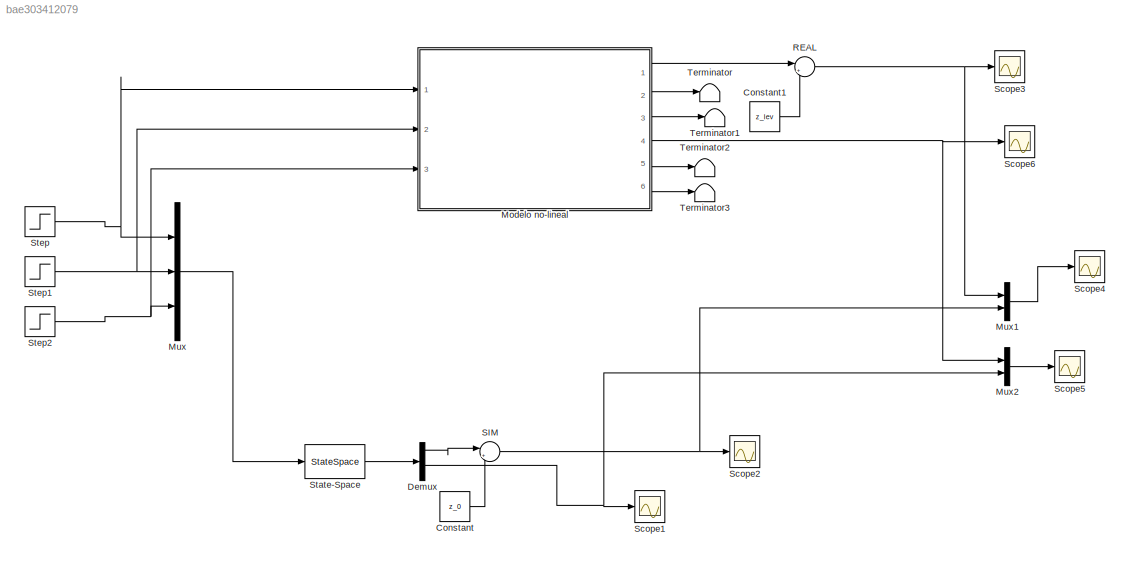
MODEL slx_bae303412079
KIND model
CONFIG AbsTol = auto
CONFIG EnableMultiTasking = off
CONFIG FixedStep = auto
CONFIG MaxStep = auto
CONFIG MinStep = auto
CONFIG RelTol = 1e-3
CONFIG SampleTimeConstraint = Unconstrained
CONFIG Solver = VariableStepAuto
CONFIG SolverName = VariableStepAuto
CONFIG StartTime = 0.0
CONFIG StopTime = 0.1
BLOCK [Constant] Constant
  Value = z_0
BLOCK [Constant] Constant1
  Value = z_lev
BLOCK [Demux] Demux
  Ports = [1, 4]
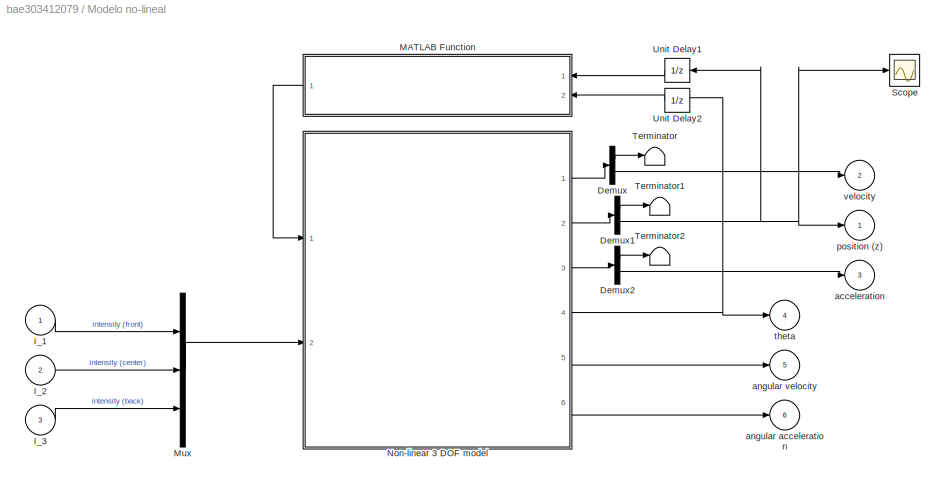
BLOCK [SubSystem] Modelo no-lineal
  Ports = [3, 6]
  RequestExecContextInheritance = off
BLOCK [Demux] Modelo no-lineal/Demux
  Outputs = 2
  Ports = [1, 2]
BLOCK [Demux] Modelo no-lineal/Demux1
  Outputs = 2
  Ports = [1, 2]
BLOCK [Demux] Modelo no-lineal/Demux2
  Outputs = 2
  Ports = [1, 2]
BLOCK [Inport] Modelo no-lineal/I_1
BLOCK [Inport] Modelo no-lineal/I_2
  Port = 2
BLOCK [Inport] Modelo no-lineal/I_3
  Port = 3
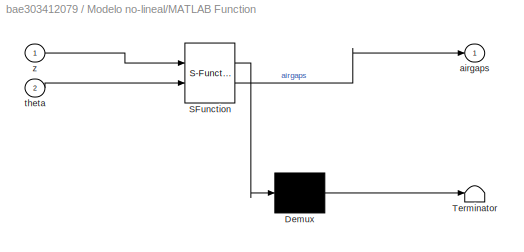
BLOCK [SubSystem] Modelo no-lineal/MATLAB Function
  ErrorFcn = Stateflow.Translate.translate
  PermitHierarchicalResolution = ExplicitOnly
  Ports = [2, 1]
  RequestExecContextInheritance = off
  SFBlockType = MATLAB Function
  TreatAsAtomicUnit = on
BLOCK [Demux] Modelo no-lineal/MATLAB Function/ Demux 
  Outputs = 1
  Ports = [1, 1]
BLOCK [S-Function] Modelo no-lineal/MATLAB Function/ SFunction 
  EnableBusSupport = on
  FunctionName = sf_sfun
  Parameters = pod
  PortCounts = [2 2]
  Ports = [2, 2]
  SFcnIsStateOwnerBlock = off
  SFunctionDeploymentMode = off
  Tag = Stateflow S-Function R19_Modelo_lineal_c_2GDL_2021 2
BLOCK [Terminator] Modelo no-lineal/MATLAB Function/ Terminator 
BLOCK [Outport] Modelo no-lineal/MATLAB Function/airgaps
BLOCK [Inport] Modelo no-lineal/MATLAB Function/theta
  Port = 2
BLOCK [Inport] Modelo no-lineal/MATLAB Function/z
BLOCK [Mux] Modelo no-lineal/Mux
  DisplayOption = bar
  Inputs = 3
  Ports = [3, 1]
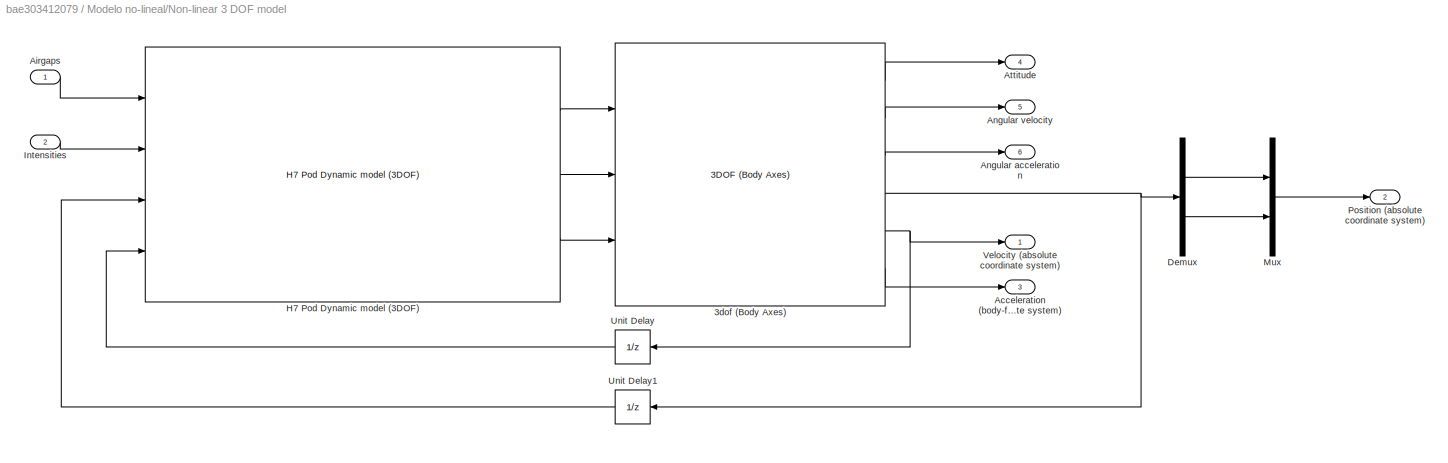
BLOCK [SubSystem] Modelo no-lineal/Non-linear 3 DOF model
  AncestorBlock = libH7_3DOF/Non-linear 3 DOF model
  Ports = [2, 6]
  RequestExecContextInheritance = off
BLOCK [Reference] Modelo no-lineal/Non-linear 3 DOF model/3dof (Body Axes)  REF=shared3dof/3DOF (Body Axes)
  Ports = [3, 6]
  SourceBlock = shared3dof/3DOF (Body Axes)
  SourceProductBaseCode = AE,PW,DR,MT,UV,VE
  SourceType = 3DOF EoM
BLOCK [Outport] Modelo no-lineal/Non-linear 3 DOF model/Acceleration (body-fixed coordinate system)
  Port = 3
BLOCK [Inport] Modelo no-lineal/Non-linear 3 DOF model/Airgaps
BLOCK [Outport] Modelo no-lineal/Non-linear 3 DOF model/Angular acceleration
  Port = 6
BLOCK [Outport] Modelo no-lineal/Non-linear 3 DOF model/Angular velocity
  Port = 5
BLOCK [Outport] Modelo no-lineal/Non-linear 3 DOF model/Attitude 
  Port = 4
BLOCK [Demux] Modelo no-lineal/Non-linear 3 DOF model/Demux
  Outputs = 2
  Ports = [1, 2]
BLOCK [Reference] Modelo no-lineal/Non-linear 3 DOF model/H7 Pod Dynamic model (3DOF)  REF=libH7_3DOF/H7 Pod Dynamic model (3DOF)
  Ports = [4, 3]
  SourceBlock = libH7_3DOF/H7 Pod Dynamic model (3DOF)
  SourceProductName = 00. H7 Pod models
BLOCK [Inport] Modelo no-lineal/Non-linear 3 DOF model/Intensities
  Port = 2
BLOCK [Mux] Modelo no-lineal/Non-linear 3 DOF model/Mux
  DisplayOption = bar
  Inputs = 2
  Ports = [2, 1]
BLOCK [Outport] Modelo no-lineal/Non-linear 3 DOF model/Position (absolute coordinate system)
  Port = 2
BLOCK [UnitDelay] Modelo no-lineal/Non-linear 3 DOF model/Unit Delay
  HasFrameUpgradeWarning = on
  InitialCondition = [0,0]
  SampleTime = -1
BLOCK [UnitDelay] Modelo no-lineal/Non-linear 3 DOF model/Unit Delay1
  HasFrameUpgradeWarning = on
  InitialCondition = initial_conds.x_0(1:2:3)
  SampleTime = -1
BLOCK [Outport] Modelo no-lineal/Non-linear 3 DOF model/Velocity (absolute coordinate system)
BLOCK [Scope] Modelo no-lineal/Scope
  Floating = off
  NumInputPorts = 1
  Ports = [1]
  ScopeSpecificationString = Simulink.scopes.TimeScopeBlockCfg('CurrentConfiguration', extmgr.ConfigurationSet(extmgr.Configuration('Core','General UI',true),extmgr.Configuration('Core','Source UI',true),extmgr.Configuration('Sources','WiredSimulink',true,'DataLoggingVariableName','ScopeData1'),extmgr.Configuration('Visuals','Time Domain',true,'SerializedDisplays',{struct('MinYLimReal','0.33765','MaxYLimReal','0.34622','YLabe...<+1365ch>
BLOCK [Terminator] Modelo no-lineal/Terminator
BLOCK [Terminator] Modelo no-lineal/Terminator1
BLOCK [Terminator] Modelo no-lineal/Terminator2
BLOCK [UnitDelay] Modelo no-lineal/Unit Delay1
  HasFrameUpgradeWarning = on
  InitialCondition = initial_conds.x_0(3)
  SampleTime = -1
BLOCK [UnitDelay] Modelo no-lineal/Unit Delay2
  HasFrameUpgradeWarning = on
  SampleTime = -1
BLOCK [Outport] Modelo no-lineal/acceleration
  Port = 3
BLOCK [Outport] Modelo no-lineal/angular acceleration
  Port = 6
BLOCK [Outport] Modelo no-lineal/angular velocity
  Port = 5
BLOCK [Outport] Modelo no-lineal/position (z)
BLOCK [Outport] Modelo no-lineal/theta
  Port = 4
BLOCK [Outport] Modelo no-lineal/velocity
  Port = 2
BLOCK [Mux] Mux
  DisplayOption = bar
  Inputs = 3
  Ports = [3, 1]
BLOCK [Mux] Mux1
  DisplayOption = bar
  Inputs = 2
  Ports = [2, 1]
BLOCK [Mux] Mux2
  DisplayOption = bar
  Inputs = 2
  Ports = [2, 1]
BLOCK [Sum] REAL
  Inputs = |+-
  Ports = [2, 1]
BLOCK [Sum] SIM
  Inputs = |++
  Ports = [2, 1]
BLOCK [Scope] Scope1
  Floating = off
  NumInputPorts = 1
  Ports = [1]
  ScopeSpecificationString = Simulink.scopes.TimeScopeBlockCfg('CurrentConfiguration', extmgr.ConfigurationSet(extmgr.Configuration('Core','General UI',true),extmgr.Configuration('Core','Source UI',true),extmgr.Configuration('Sources','WiredSimulink',true,'DataLoggingVariableName','ScopeData1'),extmgr.Configuration('Visuals','Time Domain',true,'SerializedDisplays',{struct('MinYLimReal','0.0009999999','MaxYLimReal','0.00100000...<+1770ch>
BLOCK [Scope] Scope2
  Floating = off
  NumInputPorts = 1
  Ports = [1]
  ScopeSpecificationString = Simulink.scopes.TimeScopeBlockCfg('CurrentConfiguration', extmgr.ConfigurationSet(extmgr.Configuration('Core','General UI',true),extmgr.Configuration('Core','Source UI',true),extmgr.Configuration('Sources','WiredSimulink',true),extmgr.Configuration('Visuals','Time Domain',true,'SerializedDisplays',{struct('MinYLimReal','0.00039','MaxYLimReal','0.01996','YLabelReal','','MinYLimMag','0.00039','MaxYL...<+1394ch>
BLOCK [Scope] Scope3
  Floating = off
  NumInputPorts = 1
  Ports = [1]
  ScopeSpecificationString = Simulink.scopes.TimeScopeBlockCfg('CurrentConfiguration', extmgr.ConfigurationSet(extmgr.Configuration('Core','General UI',true),extmgr.Configuration('Core','Source UI',true),extmgr.Configuration('Sources','WiredSimulink',true,'DataLoggingVariableName','ScopeData1'),extmgr.Configuration('Visuals','Time Domain',true,'SerializedDisplays',{struct('MinYLimReal','0.01029','MaxYLimReal','0.01886','YLabe...<+1415ch>
BLOCK [Scope] Scope4
  Floating = off
  NumInputPorts = 1
  Ports = [1]
  ScopeSpecificationString = Simulink.scopes.TimeScopeBlockCfg('CurrentConfiguration', extmgr.ConfigurationSet(extmgr.Configuration('Core','General UI',true),extmgr.Configuration('Core','Source UI',true),extmgr.Configuration('Sources','WiredSimulink',true,'DataLoggingVariableName','ScopeData3'),extmgr.Configuration('Visuals','Time Domain',true,'SerializedDisplays',{struct('MinYLimReal','0.01029','MaxYLimReal','0.01886','YLabe...<+1421ch>
BLOCK [Scope] Scope5
  Floating = off
  NumInputPorts = 1
  Ports = [1]
  ScopeSpecificationString = Simulink.scopes.TimeScopeBlockCfg('CurrentConfiguration', extmgr.ConfigurationSet(extmgr.Configuration('Core','General UI',true),extmgr.Configuration('Core','Source UI',true),extmgr.Configuration('Sources','WiredSimulink',true,'DataLoggingVariableName','ScopeData4'),extmgr.Configuration('Visuals','Time Domain',true,'SerializedDisplays',{struct('MinYLimReal','-0.00023','MaxYLimReal','0.00209','YLab...<+1441ch>
BLOCK [Scope] Scope6
  Floating = off
  NumInputPorts = 1
  Ports = [1]
  ScopeSpecificationString = Simulink.scopes.TimeScopeBlockCfg('CurrentConfiguration', extmgr.ConfigurationSet(extmgr.Configuration('Core','General UI',true),extmgr.Configuration('Core','Source UI',true),extmgr.Configuration('Sources','WiredSimulink',true,'DataLoggingVariableName','ScopeData2'),extmgr.Configuration('Visuals','Time Domain',true,'SerializedDisplays',{struct('MinYLimReal','-0.00023','MaxYLimReal','0.00209','YLab...<+1431ch>
BLOCK [StateSpace] State-Space
  A = Ac
  B = Bc
  C = Cc
  D = Dc
  InitialCondition = [0 0 0 0]
  Ports = [1, 1]
BLOCK [Step] Step
  After = 10
  SampleTime = 0
  Time = 0
BLOCK [Step] Step1
  After = 10
  SampleTime = 0
  Time = 0
BLOCK [Step] Step2
  After = -10
  SampleTime = 0
  Time = 0
BLOCK [Terminator] Terminator
BLOCK [Terminator] Terminator1
BLOCK [Terminator] Terminator2
BLOCK [Terminator] Terminator3
LINE Constant1:1 -> REAL:2
LINE Constant:1 -> SIM:2
LINE Demux:1 -> SIM:1
NET Demux:3 -> Mux2:2, Scope1:1
LINE Modelo no-lineal/Demux1:1 -> Modelo no-lineal/Terminator1:1
NET Modelo no-lineal/Demux1:2 -> Modelo no-lineal/Scope:1, Modelo no-lineal/Unit Delay1:1, Modelo no-lineal/position (z):1
LINE Modelo no-lineal/Demux2:1 -> Modelo no-lineal/Terminator2:1
LINE Modelo no-lineal/Demux2:2 -> Modelo no-lineal/acceleration:1
LINE Modelo no-lineal/Demux:1 -> Modelo no-lineal/Terminator:1
LINE Modelo no-lineal/Demux:2 -> Modelo no-lineal/velocity:1
LINE Modelo no-lineal/I_1:1 -> Modelo no-lineal/Mux:1
LINE Modelo no-lineal/I_2:1 -> Modelo no-lineal/Mux:2
LINE Modelo no-lineal/I_3:1 -> Modelo no-lineal/Mux:3
LINE Modelo no-lineal/MATLAB Function:1 -> Modelo no-lineal/Non-linear 3 DOF model:1
LINE Modelo no-lineal/Mux:1 -> Modelo no-lineal/Non-linear 3 DOF model:2
LINE Modelo no-lineal/Non-linear 3 DOF model:1 -> Modelo no-lineal/Demux:1
LINE Modelo no-lineal/Non-linear 3 DOF model:2 -> Modelo no-lineal/Demux1:1
LINE Modelo no-lineal/Non-linear 3 DOF model:3 -> Modelo no-lineal/Demux2:1
NET Modelo no-lineal/Non-linear 3 DOF model:4 -> Modelo no-lineal/Unit Delay2:1, Modelo no-lineal/theta:1
LINE Modelo no-lineal/Non-linear 3 DOF model:5 -> Modelo no-lineal/angular velocity:1
LINE Modelo no-lineal/Non-linear 3 DOF model:6 -> Modelo no-lineal/angular acceleration:1
LINE Modelo no-lineal/Unit Delay1:1 -> Modelo no-lineal/MATLAB Function:1
LINE Modelo no-lineal/Unit Delay2:1 -> Modelo no-lineal/MATLAB Function:2
LINE Modelo no-lineal:1 -> REAL:1
LINE Modelo no-lineal:2 -> Terminator:1
LINE Modelo no-lineal:3 -> Terminator1:1
NET Modelo no-lineal:4 -> Mux2:1, Scope6:1
LINE Modelo no-lineal:5 -> Terminator2:1
LINE Modelo no-lineal:6 -> Terminator3:1
LINE Mux1:1 -> Scope4:1
LINE Mux2:1 -> Scope5:1
LINE Mux:1 -> State-Space:1
NET REAL:1 -> Mux1:1, Scope3:1
NET SIM:1 -> Mux1:2, Scope2:1
LINE State-Space:1 -> Demux:1
NET Step1:1 -> Modelo no-lineal:2, Mux:2
NET Step2:1 -> Modelo no-lineal:3, Mux:3
NET Step:1 -> Modelo no-lineal:1, Mux:1
note: NET lines group one-source signal fan-out (src -> all destinations, sorted); 1:1 wires keep LINE
CHART Modelo no-lineal/MATLAB Function states=1 transitions=1
  STATE_LABEL 'eML_blk_kernel()'
  STATE_LABEL 'SCRIPT:\nfunction airgaps = pos2ag2D(z, theta, pod)\n% Computes the airgaps (mm) as a function of the position (m) and \n% attitude (rad) of the prototype\n% ═════════════════════════════════════════════════════════════════════════\n% Last updated: 15.01.2022\n% ═════════════════════════════════════════════════════════════════════════\n\nairgaps = zeros(3,1);\n\nairgaps(1) = z - pod.geometry.x_LEV * sin(the...<+347ch>'
